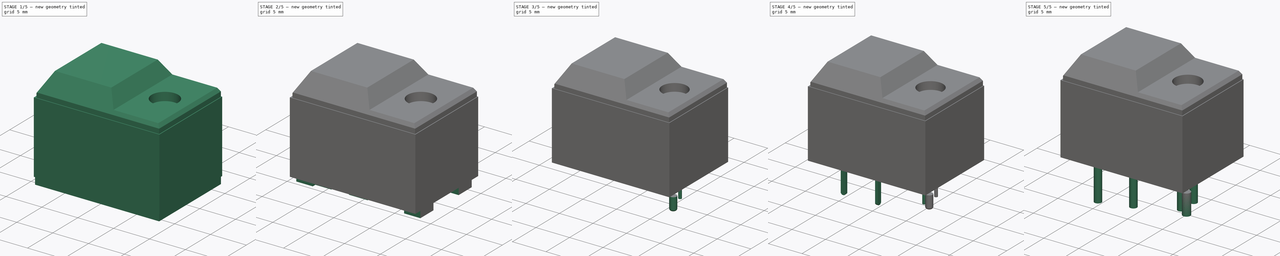
[diagram: build sequence overview — one tinted view per stage of 5, left to right]
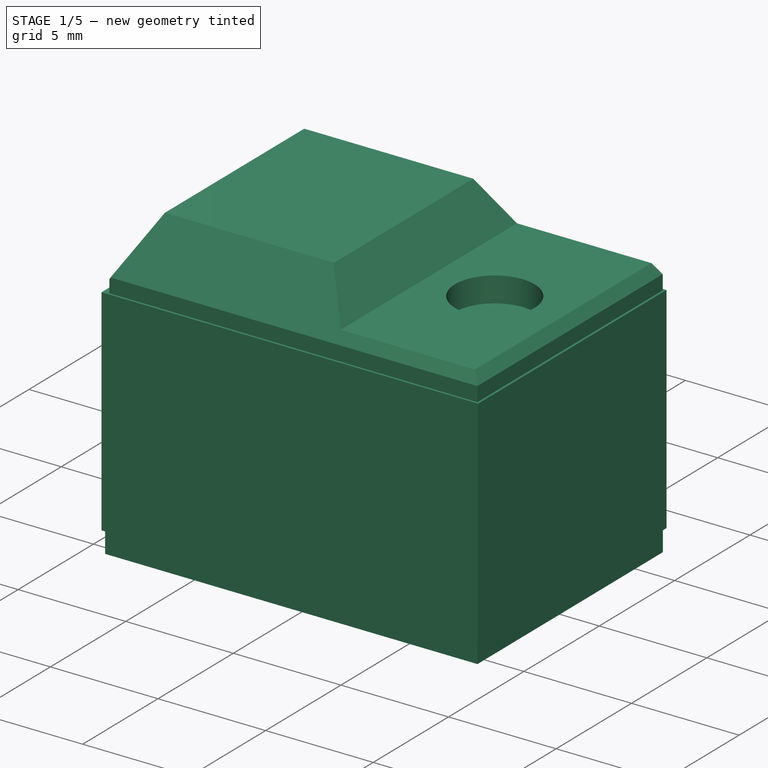
[diagram: stage 1 of 5 — iso view after this stage's code; geometry added in this stage tinted green]
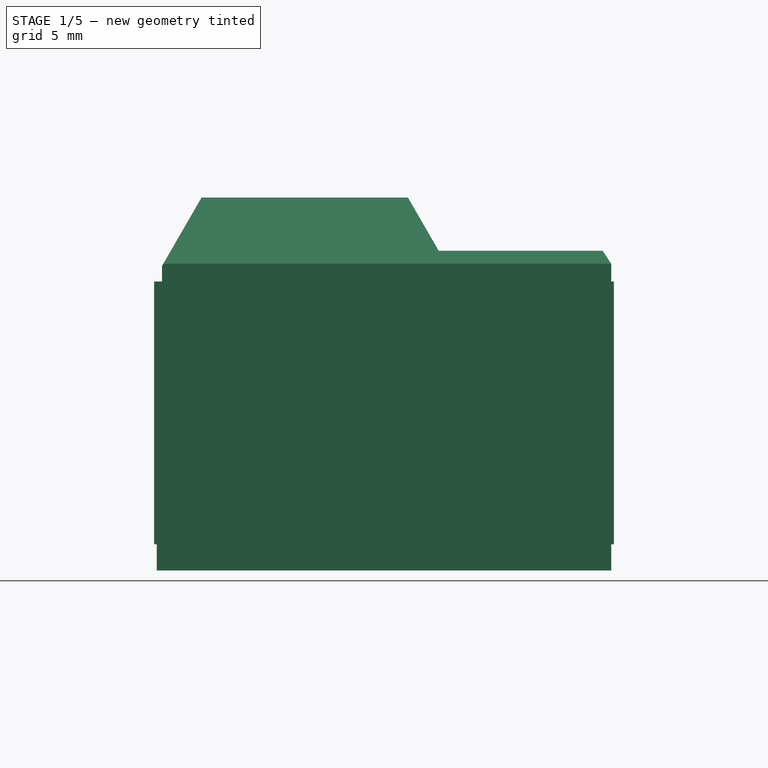
[diagram: stage 1 of 5 — front view after this stage's code; geometry added in this stage tinted green]
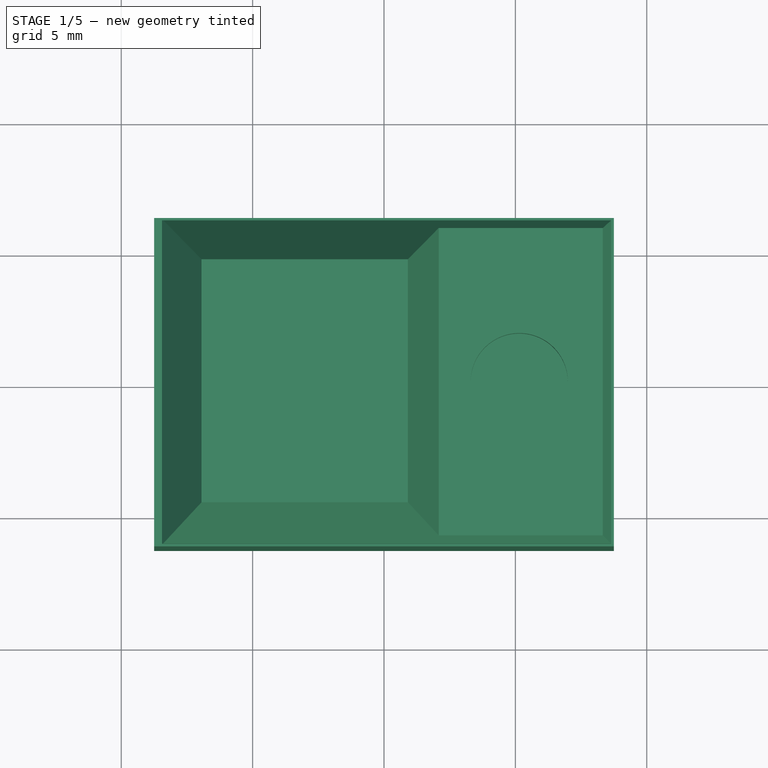
[diagram: stage 1 of 5 — top view after this stage's code; geometry added in this stage tinted green]
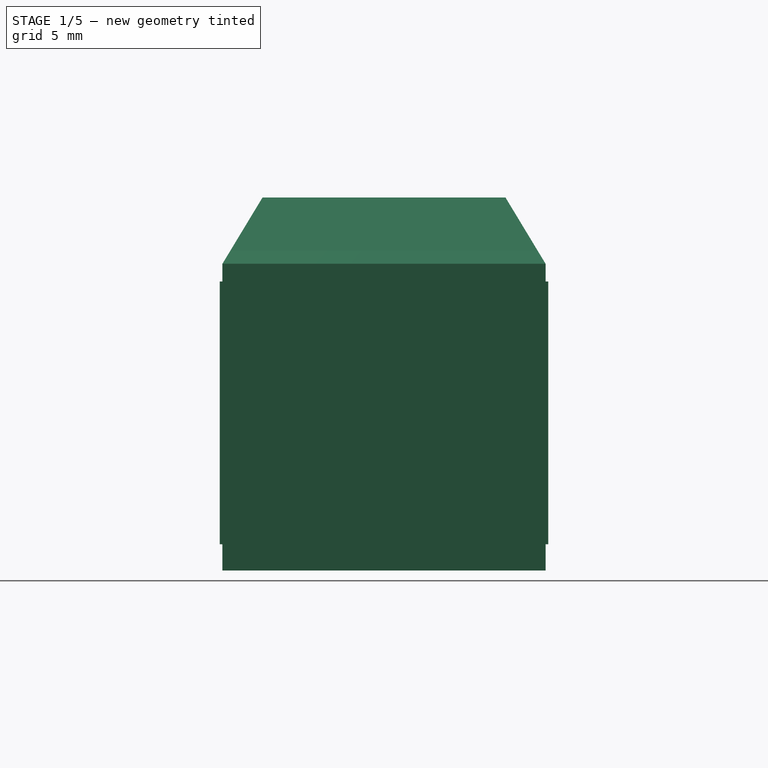
[diagram: stage 1 of 5 — right view after this stage's code; geometry added in this stage tinted green]
FCSTD DOCUMENT  (FreeCAD 0.17R13335 (Git))
Label: Digitast
License: All rights reserved
LicenseURL: http://en.wikipedia.org/wiki/All_rights_reserved
objects: Sketcher::SketchObject×21, PartDesign::Pocket×11, Part::FeaturePython×11, Image::ImagePlane×7, Part::Extrusion×7, PartDesign::Pad×3, Part::Cut×2, Part::Compound×2, Spreadsheet::Sheet×1, Part::Mirroring×1, Part::Chamfer×1, Part::Fillet×1, Part::Feature×1, Part::Cylinder×1, App::DocumentObjectGroupPython×1
note: 76 computed .brp shape members not serialized (recipe doc carries the construction recipe); baked Part::Feature solids carry a one-line shape summary decoded from their .brp

FEATURE [Spreadsheet::Sheet] Spreadsheet
  cells = B3=pdf; C3=66,891 px; D3==17.5mm; F3==66.891099999999994 / 17.5; G3==1mm; F4==100 / 3.8223500000000001; F5==159.25 * 26.161899999999999; F6==53.558999999999997 * 26.161899999999999; C9=44.107999999999997; D9=14.300000000000001; F9=3.0844755240000001; G9==1mm; F10=32.420422598999998
FEATURE [Image::ImagePlane] ImagePlane  label="DigitastBaseBottom"
  Placement = pos=(2.49,4.28,-7.9) rot=(0,-1,0;3.14159rad)
  XSize = 41.66
  YSize = 36.23
FEATURE [Image::ImagePlane] ImagePlane001  label="DigitastBaseFront"
  Placement = pos=(-8.7,0,-4.5) rot=(0,1,0;1.5708rad)
  XSize = 14.01
  YSize = 12.34
FEATURE [Image::ImagePlane] ImagePlane002  label="DigitastBaseTop"
  Placement = pos=(-0.09,0.04,0) rot=(0,0,1;0rad)
  XSize = 20.39
  YSize = 13.83
FEATURE [Image::ImagePlane] ImagePlane003  label="DigitastBaseSide"
  Placement = pos=(3.44,-6.15,-9.2) rot=(0,0.707107,0.707107;3.14159rad)
  XSize = 45.53
  YSize = 30.98
FEATURE [Sketcher::SketchObject] Sketch
  MapMode = 5
  Placement = pos=(0,0,-7.9) rot=(0,0,1;0rad)
  sketch-geometry (8):
    g0: LineSegment StartX=-8.65 StartY=6.15 StartZ=0 EndX=8.65 EndY=6.15 EndZ=0
    g1: LineSegment StartX=8.65 StartY=6.15 StartZ=0 EndX=8.65 EndY=-6.15 EndZ=0
    g2: LineSegment StartX=8.65 StartY=-6.15 StartZ=0 EndX=-8.65 EndY=-6.15 EndZ=0
    g3: LineSegment StartX=-8.65 StartY=6.15 StartZ=0 EndX=-8.65 EndY=0.495297 EndZ=0
    g4: LineSegment StartX=-8.65 StartY=0.495297 StartZ=0 EndX=-7.84579 EndY=0.495297 EndZ=0
    g5: LineSegment StartX=-7.84579 StartY=0.495297 StartZ=0 EndX=-7.84579 EndY=-0.495297 EndZ=0
    g6: LineSegment StartX=-7.84579 StartY=-0.495297 StartZ=0 EndX=-8.65 EndY=-0.495297 EndZ=0
    g7: LineSegment StartX=-8.65 StartY=-0.495297 StartZ=0 EndX=-8.65 EndY=-6.15 EndZ=0
  constraints (21):
    c: Coincident(g0,g1)
    c: Coincident(g1,g2)
    c: Horizontal(g2)
    c: Vertical(g1)
    c: Symmetric(g0,g2,g-1)
    c: Symmetric(g1,g0,g-1)
    c: Symmetric(g0,g0,g-2)
    c: Coincident(g3,g0)
    c: Vertical(g3)
    c: Horizontal(g4)
    c: Coincident(g5,g4)
    c: Vertical(g5)
    c: Coincident(g6,g5)
    c: Horizontal(g6)
    c: Coincident(g7,g6)
    c: Coincident(g7,g2)
    c: Vertical(g7)
    c: Coincident(g3,g4)
    c: Symmetric(g6,g3,g-1)
    c: DistanceX(g0,g0) = 17.3
    c: DistanceY(g2,g0) = 12.3
FEATURE [PartDesign::Pad] Pad
  Length = 7.9
  Length2 = 100
  Placement = pos=(0,0,-7.9) rot=(0,0,1;0rad)
  Profile = -> Sketch
  Type = 0
FEATURE [Image::ImagePlane] ImagePlane004  label="DigitastAllTop"
  Placement = pos=(0,0,6) rot=(0,0,1;0rad)
  XSize = 17.27
  YSize = 12.33
FEATURE [Image::ImagePlane] ImagePlane005  label="DigitastAllSide"
  Placement = pos=(4.88,0.85,-8.95) rot=(0,-0.707107,-0.707107;3.14159rad)
  XSize = 45.41
  YSize = 30.6
FEATURE [Image::ImagePlane] ImagePlane006  label="DigitastAllFront"
  Placement = pos=(3.65,0,-2.34) rot=(-0.707107,0,0.707107;3.14159rad)
  XSize = 18.46
  YSize = 12.33
FEATURE [Sketcher::SketchObject] Sketch016
  MapMode = 5
  Placement = pos=(0,0,0) rot=(1,0,0;1.5708rad)
  sketch-geometry (15):
    g0: LineSegment StartX=-8.45235 StartY=1.22387 StartZ=0 EndX=-8.45235 EndY=3.68772 EndZ=0
    g1: LineSegment StartX=-8.45235 StartY=3.68772 StartZ=0 EndX=-6.94415 EndY=6.3 EndZ=0
    g2: LineSegment StartX=-6.94415 StartY=6.3 StartZ=0 EndX=0.910413 EndY=6.3 EndZ=0
    g3: LineSegment StartX=0.910413 StartY=6.3 StartZ=0 EndX=2.08192 EndY=4.27089 EndZ=0
    g4: LineSegment StartX=2.08192 StartY=4.27089 StartZ=0 EndX=8.32635 EndY=4.27089 EndZ=0
    g5: LineSegment StartX=8.32635 StartY=4.27089 StartZ=0 EndX=8.64765 EndY=3.77549 EndZ=0
    g6: LineSegment StartX=8.64765 StartY=3.77549 StartZ=0 EndX=8.64765 EndY=0 EndZ=0
    g7: LineSegment StartX=8.64765 StartY=0 StartZ=0 EndX=8.24716 EndY=0 EndZ=0
    g8: LineSegment StartX=8.24716 StartY=0 StartZ=0 EndX=8.24716 EndY=-2.24335 EndZ=0
    g9: LineSegment StartX=8.24716 StartY=-2.24335 StartZ=0 EndX=6.67137 EndY=-2.24335 EndZ=0
    g10: LineSegment StartX=6.67137 StartY=-2.24335 StartZ=0 EndX=6.67137 EndY=-3.40864 EndZ=0
    g11: LineSegment StartX=6.67137 StartY=-3.40864 StartZ=0 EndX=5.78404 EndY=-4.64178 EndZ=0
    g12: LineSegment StartX=-8.45235 StartY=1.22387 StartZ=0 EndX=4.3357 EndY=1.22387 EndZ=0
    g13: LineSegment StartX=4.3357 StartY=1.22387 StartZ=0 EndX=4.3357 EndY=-2.97867 EndZ=0
    g14: ArcOfCircle CenterX=6.49095 CenterY=-2.56396 CenterZ=0 NormalX=0 NormalY=0 NormalZ=1 AngleXU=0 Radius=2.19478 StartAngle=3.33169 EndAngle=4.38446
  constraints (30):
    c: Coincident(g0,g1)
    c: Coincident(g1,g2)
    c: Coincident(g2,g3)
    c: Coincident(g3,g4)
    c: Coincident(g4,g5)
    c: Coincident(g5,g6)
    c: Coincident(g6,g7)
    c: Coincident(g7,g8)
    c: Coincident(g8,g9)
    c: Coincident(g9,g10)
    c: Coincident(g10,g11)
    c: Horizontal(g12)
    c: Coincident(g13,g12)
    c: Coincident(g12,g0)
    c: Horizontal(g9)
    c: Vertical(g8)
    c: Vertical(g6)
    c: Horizontal(g4)
    c: Angle(g1,g2) = 2.0944
    c: Angle(g2,g3) = 2.0944
    c: Horizontal(g2)
    c: Vertical(g0)
    c: Vertical(g13)
    c: Vertical(g10)
    c: DistanceX(g0,g5) = 17.1
    c: DistanceY(g-1,g2) = 6.3
    c: Coincident(g14,g13)
    c: Coincident(g14,g11)
    c: Horizontal(g7)
    c: PointOnObject(g7,g-1)
FEATURE [PartDesign::Pad] Pad002
  Length = 12.3
  Length2 = 100
  Midplane = true
  Placement = pos=(0,0,0) rot=(1,0,0;1.5708rad)
  Profile = -> Sketch016
  Type = 0
FEATURE [Sketcher::SketchObject] Sketch017
  ExternalGeometry = -> [Pad002]
  MapMode = 5
  Placement = pos=(8.24716,0,0) rot=(0.707107,0,0.707107;3.14159rad)
  Support = -> [Pad002]
  sketch-geometry (4):
    g0: LineSegment StartX=0 StartY=4.5 StartZ=0 EndX=-4.64178 EndY=4.5 EndZ=0
    g1: LineSegment StartX=-4.64178 StartY=4.5 StartZ=0 EndX=-4.64178 EndY=-4.5 EndZ=0
    g2: LineSegment StartX=-4.64178 StartY=-4.5 StartZ=0 EndX=0 EndY=-4.5 EndZ=0
    g3: LineSegment StartX=0 StartY=-4.5 StartZ=0 EndX=0 EndY=4.5 EndZ=0
  constraints (12):
    c: Coincident(g0,g1)
    c: Coincident(g1,g2)
    c: Coincident(g2,g3)
    c: Coincident(g3,g0)
    c: Horizontal(g0)
    c: Horizontal(g2)
    c: Vertical(g1)
    c: Vertical(g3)
    c: PointOnObject(g0,g-2)
    c: Symmetric(g1,g0,g-1)
    c: DistanceY(g1,g1) = 9
    c: PointOnObject(g1,g-3)
FEATURE [PartDesign::Pocket] Pocket007
  Length = 5
  Length2 = 100
  Placement = pos=(0,0,0) rot=(1,0,0;1.5708rad)
  Profile = -> Sketch017
  Type = 1
FEATURE [Sketcher::SketchObject] Sketch018
  ExternalGeometry = -> [Pocket007]
  MapMode = 5
  Placement = pos=(8.64765,0,0) rot=(0.707107,0,0.707107;3.14159rad)
  Support = -> [Pocket007]
  sketch-geometry (6):
    g0: LineSegment StartX=6.3 StartY=4.6235 StartZ=0 EndX=3.77549 EndY=6.15 EndZ=0
    g1: LineSegment StartX=6.3 StartY=6.15 StartZ=0 EndX=6.3 EndY=4.6235 EndZ=0
    g2: LineSegment StartX=6.3 StartY=-4.6235 StartZ=0 EndX=6.3 EndY=-6.15 EndZ=0
    g3: LineSegment StartX=6.3 StartY=-6.15 StartZ=0 EndX=3.77549 EndY=-6.15 EndZ=0
    g4: LineSegment StartX=3.77549 StartY=-6.15 StartZ=0 EndX=6.3 EndY=-4.6235 EndZ=0
    g5: LineSegment StartX=3.77549 StartY=6.15 StartZ=0 EndX=6.3 EndY=6.15 EndZ=0
  constraints (13):
    c: PointOnObject(g0,g-3)
    c: Coincident(g0,g-7)
    c: Coincident(g1,g-5)
    c: Coincident(g1,g0)
    c: PointOnObject(g2,g-3)
    c: Coincident(g2,g-4)
    c: Coincident(g2,g3)
    c: Coincident(g3,g-6)
    c: Coincident(g3,g4)
    c: Coincident(g4,g2)
    c: Symmetric(g2,g0,g-1)
    c: Coincident(g5,g0)
    c: Coincident(g5,g1)
FEATURE [PartDesign::Pocket] Pocket008
  Length = 5
  Length2 = 100
  Placement = pos=(0,0,0) rot=(1,0,0;1.5708rad)
  Profile = -> Sketch018
  Type = 1
FEATURE [Sketcher::SketchObject] Sketch019
  ExternalGeometry = -> [Pocket008]
  MapMode = 5
  Placement = pos=(0,0,1.22387) rot=(1,0,0;3.14159rad)
  Support = -> [Pocket008]
  sketch-geometry (4):
    g0: LineSegment StartX=-6.94415 StartY=4.6235 StartZ=0 EndX=0.910413 EndY=4.6235 EndZ=0
    g1: LineSegment StartX=0.910413 StartY=4.6235 StartZ=0 EndX=0.910413 EndY=-4.6235 EndZ=0
    g2: LineSegment StartX=0.910413 StartY=-4.6235 StartZ=0 EndX=-6.94415 EndY=-4.6235 EndZ=0
    g3: LineSegment StartX=-6.94415 StartY=-4.6235 StartZ=0 EndX=-6.94415 EndY=4.6235 EndZ=0
  constraints (10):
    c: Coincident(g0,g1)
    c: Coincident(g1,g2)
    c: Coincident(g2,g3)
    c: Coincident(g3,g0)
    c: Horizontal(g0)
    c: Horizontal(g2)
    c: Vertical(g1)
    c: Vertical(g3)
    c: Coincident(g0,g-4)
    c: Coincident(g1,g-6)
FEATURE [PartDesign::Pocket] Pocket009
  Length = 2.55
  Length2 = 100
  Placement = pos=(0,0,0) rot=(1,0,0;1.5708rad)
  Profile = -> Sketch019
  Type = 0
FEATURE [Sketcher::SketchObject] Sketch020
  ExternalGeometry = -> [Pocket009]
  MapMode = 5
  Placement = pos=(0,0,6.3) rot=(0,0,1;3.14159rad)
  Support = -> [Pocket009]
  sketch-geometry (1):
    g0: Circle CenterX=-5.14765 CenterY=0 CenterZ=0 NormalX=0 NormalY=0 NormalZ=1 AngleXU=0 Radius=1.85
  constraints (3):
    c: PointOnObject(g0,g-1)
    c: DistanceX(g-3,g0) = 3.5
    c: Radius(g0) = 1.85
FEATURE [PartDesign::Pocket] Pocket010  label="DigitastTop"
  Length = 5
  Length2 = 100
  Placement = pos=(0,0,0) rot=(1,0,0;1.5708rad)
  Profile = -> Sketch020
  Type = 1
FEATURE [Sketcher::SketchObject] Sketch021
  MapMode = 5
  Placement = pos=(0,0,-6.9) rot=(1,0,0;3.14159rad)
  sketch-geometry (4):
    g0: LineSegment StartX=-8.75 StartY=6.25 StartZ=0 EndX=8.75 EndY=6.25 EndZ=0
    g1: LineSegment StartX=8.75 StartY=6.25 StartZ=0 EndX=8.75 EndY=-6.25 EndZ=0
    g2: LineSegment StartX=8.75 StartY=-6.25 StartZ=0 EndX=-8.75 EndY=-6.25 EndZ=0
    g3: LineSegment StartX=-8.75 StartY=-6.25 StartZ=0 EndX=-8.75 EndY=6.25 EndZ=0
  constraints (8):
    c: Coincident(g0,g1)
    c: Coincident(g1,g2)
    c: Coincident(g2,g3)
    c: Coincident(g3,g0)
    c: Horizontal(g0)
    c: Horizontal(g2)
    c: Vertical(g1)
    c: Vertical(g3)
FEATURE [Part::Extrusion] Extrude006  label="DigitastFPHole"
  Base = -> Sketch021
  Dir = (0,0,10)
  DirMode = 0
  FaceMakerClass = Part::FaceMakerExtrusion
  LengthFwd = 0
  LengthRev = 0
  Solid = true
  Symmetric = false
FEATURE [Part::Cylinder] Cylinder
  Angle = 360
  AttacherType = Attacher::AttachEngine3D
  Height = 10
  Placement = pos=(7,-5,-3) rot=(-1,0,0;1.5708rad)
  Radius = 0.4
FEATURE [App::DocumentObjectGroupPython] FPSimButton  # scripted group (container) (typed FeaturePython)
  Group = -> [Pocket010,Cylinder]
  RotationAngle = -6
  RotationAxis = (0,1,0)
  RotationCenter = (7,5,-3)
  Translation = (0.4,0,0)
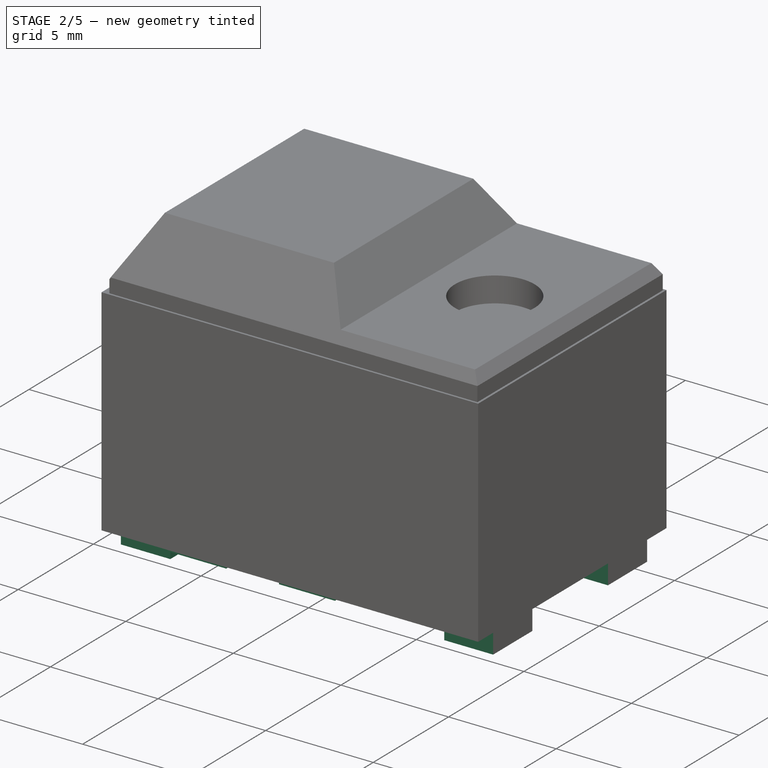
[diagram: stage 2 of 5 — iso view after this stage's code; geometry added in this stage tinted green]
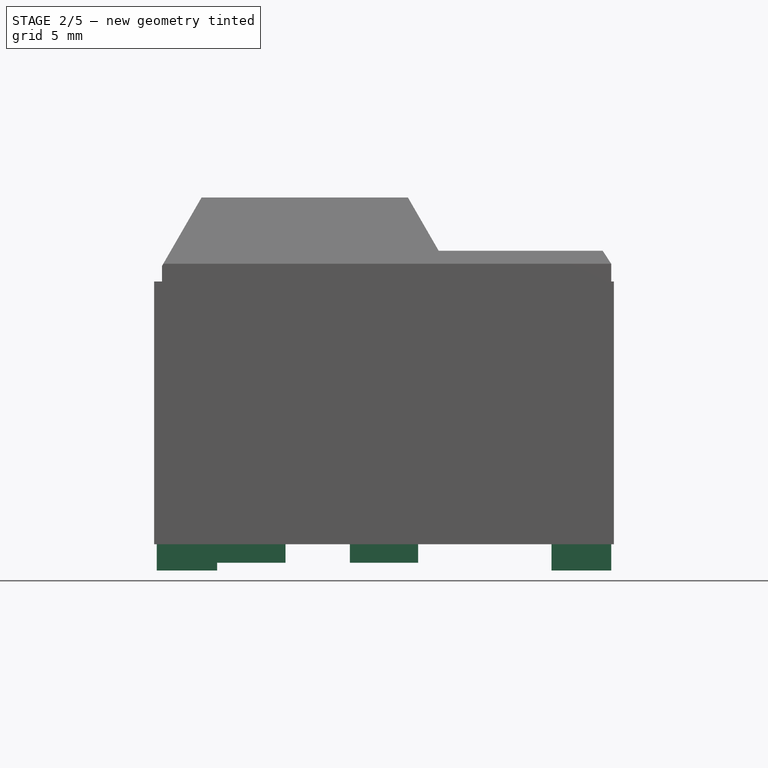
[diagram: stage 2 of 5 — front view after this stage's code; geometry added in this stage tinted green]
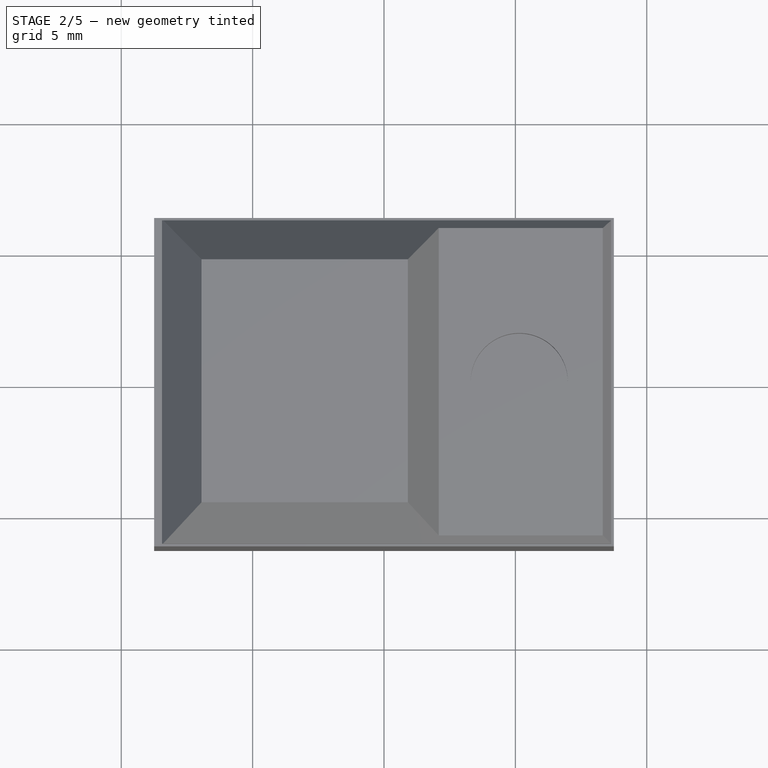
[diagram: stage 2 of 5 — top view after this stage's code; geometry added in this stage tinted green]
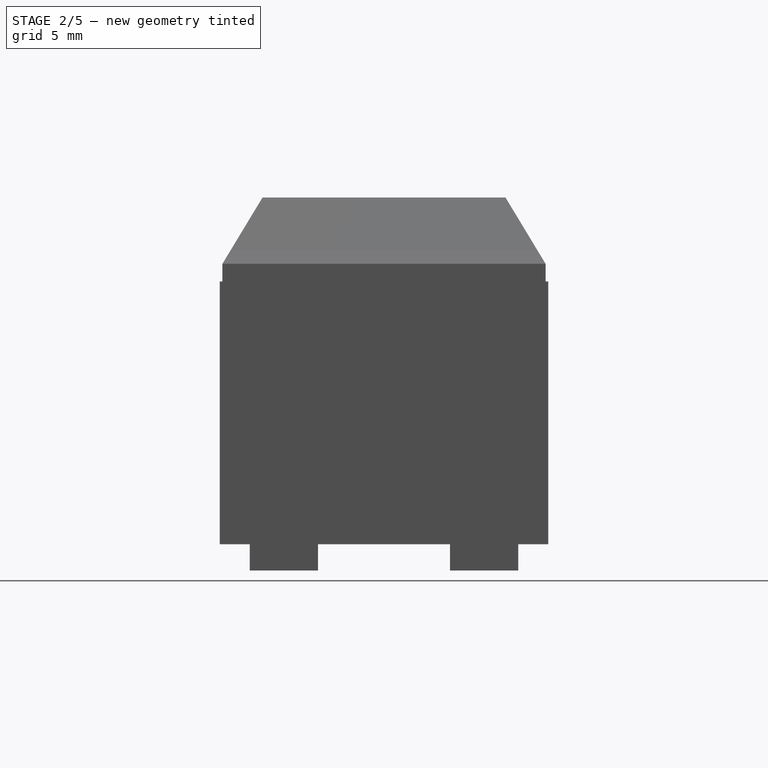
[diagram: stage 2 of 5 — right view after this stage's code; geometry added in this stage tinted green]
FEATURE [Sketcher::SketchObject] Sketch001
  MapMode = 5
  Placement = pos=(0,-6.15,-7.9) rot=(1,0,0;1.5708rad)
  Support = -> [Pad]
  sketch-geometry (11):
    g0: LineSegment StartX=-6.35116 StartY=0 StartZ=0 EndX=-6.35116 EndY=0.294561 EndZ=0
    g1: LineSegment StartX=-6.35116 StartY=0.294561 StartZ=0 EndX=-3.75116 EndY=0.294561 EndZ=0
    g2: LineSegment StartX=-3.75116 StartY=0.294561 StartZ=0 EndX=-3.75116 EndY=1 EndZ=0
    g3: LineSegment StartX=-3.75116 StartY=1 StartZ=0 EndX=-1.3 EndY=1 EndZ=0
    g4: LineSegment StartX=-1.3 StartY=1 StartZ=0 EndX=-1.3 EndY=0.294561 EndZ=0
    g5: LineSegment StartX=-1.3 StartY=0.294561 StartZ=0 EndX=1.3 EndY=0.294561 EndZ=0
    g6: LineSegment StartX=1.3 StartY=0.294561 StartZ=0 EndX=1.3 EndY=1 EndZ=0
    g7: LineSegment StartX=1.3 StartY=1 StartZ=0 EndX=6.37524 EndY=1 EndZ=0
    g8: LineSegment StartX=6.37524 StartY=1 StartZ=0 EndX=6.37524 EndY=0 EndZ=0
    g9: LineSegment StartX=6.37524 StartY=0 StartZ=0 EndX=-6.35116 EndY=0 EndZ=0
    g10: LineSegment [constr] StartX=-8.61643 StartY=1 StartZ=0 EndX=8.67727 EndY=1 EndZ=0
  constraints (29):
    c: Vertical(g0)
    c: Coincident(g0,g1)
    c: Horizontal(g1)
    c: Coincident(g1,g2)
    c: Vertical(g2)
    c: Coincident(g2,g3)
    c: Horizontal(g3)
    c: Coincident(g3,g4)
    c: Vertical(g4)
    c: Coincident(g4,g5)
    c: Horizontal(g5)
    c: Coincident(g5,g6)
    c: Vertical(g6)
    c: Coincident(g6,g7)
    c: Horizontal(g7)
    c: Coincident(g7,g8)
    c: PointOnObject(g8,g-1)
    c: Vertical(g8)
    c: Coincident(g8,g9)
    c: Coincident(g9,g0)
    c: Horizontal(g9)
    c: Horizontal(g10)
    c: DistanceY(g8,g10) = 1
    c: PointOnObject(g6,g10)
    c: PointOnObject(g2,g10)
    c: Equal(g1,g5)
    c: Equal(g2,g4)
    c: DistanceX(g5,g5) = 2.6
    c: Symmetric(g4,g5,g-2)
FEATURE [PartDesign::Pocket] Pocket
  Length = 5
  Length2 = 100
  Placement = pos=(0,0,-7.9) rot=(0,0,1;0rad)
  Profile = -> Sketch001
  Type = 1
FEATURE [Sketcher::SketchObject] Sketch002
  ExternalGeometry = -> [Pocket]
  MapMode = 5
  Placement = pos=(0,-6.15,-7.9) rot=(1,0,0;1.5708rad)
  Support = -> [Pocket]
  sketch-geometry (3):
    g0: LineSegment StartX=-8.65 StartY=7.88926 StartZ=0 EndX=-8.65 EndY=6.90993 EndZ=0
    g1: LineSegment StartX=-8.65 StartY=6.90993 StartZ=0 EndX=-0.95 EndY=7.9 EndZ=0
    g2: LineSegment StartX=-0.95 StartY=7.9 StartZ=0 EndX=-8.65 EndY=7.88926 EndZ=0
  constraints (7):
    c: PointOnObject(g0,g-3)
    c: Vertical(g0)
    c: Coincident(g0,g1)
    c: Coincident(g1,g2)
    c: Coincident(g2,g0)
    c: PointOnObject(g1,g-4)
    c: DistanceX(g2,g2) = 7.7
FEATURE [PartDesign::Pocket] Pocket001
  Length = 5
  Length2 = 100
  Placement = pos=(0,0,-7.9) rot=(0,0,1;0rad)
  Profile = -> Sketch002
  Type = 1
FEATURE [Sketcher::SketchObject] Sketch003
  ExternalGeometry = -> [Pocket001]
  MapMode = 5
  Placement = pos=(-8.65,0,-7.9) rot=(0.57735,-0.57735,-0.57735;2.0944rad)
  Support = -> [Pocket001]
  sketch-geometry (15):
    g0: LineSegment StartX=-6.15 StartY=0 StartZ=0 EndX=-5.11 EndY=0 EndZ=0
    g1: LineSegment StartX=-5.11 StartY=0 StartZ=0 EndX=-5.11 EndY=1 EndZ=0
    g2: LineSegment StartX=-5.11 StartY=1 StartZ=0 EndX=-6.15 EndY=1 EndZ=0
    g3: LineSegment StartX=-6.15 StartY=1 StartZ=0 EndX=-6.15 EndY=0 EndZ=0
    g4: LineSegment StartX=6.15 StartY=0 StartZ=0 EndX=5.11 EndY=0 EndZ=0
    g5: LineSegment StartX=5.11 StartY=0 StartZ=0 EndX=5.11 EndY=1 EndZ=0
    g6: LineSegment StartX=5.11 StartY=1 StartZ=0 EndX=6.15 EndY=1 EndZ=0
    g7: LineSegment StartX=6.15 StartY=1 StartZ=0 EndX=6.15 EndY=0 EndZ=0
    g8: LineSegment StartX=-2.51 StartY=0 StartZ=0 EndX=2.51 EndY=0 EndZ=0
    g9: LineSegment StartX=2.51 StartY=0 StartZ=0 EndX=2.51 EndY=1 EndZ=0
    g10: LineSegment StartX=2.51 StartY=1 StartZ=0 EndX=-2.51 EndY=1 EndZ=0
    g11: LineSegment StartX=-2.51 StartY=1 StartZ=0 EndX=-2.51 EndY=0 EndZ=0
    g12: LineSegment [constr] StartX=-6.15 StartY=1 StartZ=0 EndX=6.15 EndY=1 EndZ=0
    g13: LineSegment [constr] StartX=-3.81 StartY=2.52052 StartZ=0 EndX=-3.81 EndY=-0.763645 EndZ=0
    g14: LineSegment [constr] StartX=3.81 StartY=2.52052 StartZ=0 EndX=3.81 EndY=-0.763645 EndZ=0
  constraints (42):
    c: Coincident(g0,g1)
    c: Coincident(g1,g2)
    c: Coincident(g2,g3)
    c: Coincident(g3,g0)
    c: Horizontal(g0)
    c: Horizontal(g2)
    c: Vertical(g1)
    c: Vertical(g3)
    c: Coincident(g0,g-3)
    c: Coincident(g4,g5)
    c: Coincident(g5,g6)
    c: Coincident(g6,g7)
    c: Coincident(g7,g4)
    c: Horizontal(g4)
    c: Horizontal(g6)
    c: Vertical(g5)
    c: Vertical(g7)
    c: Coincident(g4,g-4)
    c: Coincident(g8,g9)
    c: Coincident(g9,g10)
    c: Coincident(g10,g11)
    c: Coincident(g11,g8)
    c: Horizontal(g8)
    c: Horizontal(g10)
    c: Vertical(g9)
    c: Vertical(g11)
    c: PointOnObject(g8,g-1)
    c: PointOnObject(g12,g-3)
    c: Horizontal(g12)
    c: PointOnObject(g1,g12)
    c: PointOnObject(g10,g12)
    c: PointOnObject(g5,g12)
    c: Symmetric(g8,g8,g-2)
    c: Symmetric(g0,g4,g-2)
    c: DistanceY(g4,g12) = 1
    c: PointOnObject(g12,g-4)
    c: Vertical(g14)
    c: Symmetric(g13,g14,g-2)
    c: Symmetric(g13,g14,g-2)
    c: DistanceX(g13,g14) = 7.62
    c: Symmetric(g8,g0,g13)
    c: DistanceX(g8,g4) = 2.6
FEATURE [PartDesign::Pocket] Pocket002
  Length = 5
  Length2 = 100
  Placement = pos=(0,0,-7.9) rot=(0,0,1;0rad)
  Profile = -> Sketch003
  Type = 1
FEATURE [Sketcher::SketchObject] Sketch005
  ExternalGeometry = -> [Pocket002]
  MapMode = 5
  Placement = pos=(0,-6.15,-7.9) rot=(1,0,0;1.5708rad)
  Support = -> [Pocket002]
  sketch-geometry (5):
    g0: LineSegment StartX=6.2318 StartY=3.06018 StartZ=0 EndX=8.65 EndY=3.06018 EndZ=0
    g1: LineSegment StartX=8.65 StartY=3.06018 StartZ=0 EndX=8.65 EndY=7.9 EndZ=0
    g2: LineSegment StartX=8.65 StartY=7.9 StartZ=0 EndX=4.40966 EndY=7.9 EndZ=0
    g3: LineSegment StartX=4.40966 StartY=7.9 StartZ=0 EndX=4.40966 EndY=4.84345 EndZ=0
    g4: ArcOfCircle CenterX=6.35725 CenterY=5.01092 CenterZ=0 NormalX=0 NormalY=0 NormalZ=1 AngleXU=0 Radius=1.95477 StartAngle=3.22737 EndAngle=4.64817
  constraints (13):
    c: PointOnObject(g0,g-3)
    c: Horizontal(g0)
    c: Coincident(g0,g1)
    c: PointOnObject(g1,g-3)
    c: Coincident(g1,g2)
    c: PointOnObject(g2,g-4)
    c: Horizontal(g2)
    c: Coincident(g2,g3)
    c: Vertical(g3)
    c: DistanceX(g4) = 6.35725
    c: DistanceY(g4) = 5.01092
    c: Coincident(g4,g3)
    c: Coincident(g0,g4)
FEATURE [Part::Extrusion] Extrude
  Base = -> Sketch005
  Dir = (0,1.7,0)
  DirMode = 0
  FaceMakerClass = Part::FaceMakerExtrusion
  LengthFwd = 0
  LengthRev = 0
  Solid = true
  Symmetric = false
FEATURE [Part::Mirroring] Part__Mirroring  label="Extrude (Mirror #1)"
  Base = (0,0,0)
  Normal = (0,1,0)
  Source = -> Extrude
FEATURE [Part::Cut] Cut
  Base = -> Pocket002
  Tool = -> Part__Mirroring
FEATURE [Part::Cut] Cut001
  Base = -> Cut
  Tool = -> Extrude
FEATURE [Sketcher::SketchObject] Sketch006
  ExternalGeometry = -> [Cut001]
  MapMode = 5
  Placement = pos=(0,0,-4.83982) rot=(0,0,1;0rad)
  Support = -> [Cut001]
  sketch-geometry (8):
    g0: LineSegment StartX=7.65 StartY=5.45 StartZ=0 EndX=8.65 EndY=5.45 EndZ=0
    g1: LineSegment StartX=8.65 StartY=5.45 StartZ=0 EndX=8.65 EndY=4.45 EndZ=0
    g2: LineSegment StartX=8.65 StartY=4.45 StartZ=0 EndX=7.65 EndY=4.45 EndZ=0
    g3: LineSegment StartX=7.65 StartY=4.45 StartZ=0 EndX=7.65 EndY=5.45 EndZ=0
    g4: LineSegment StartX=8.65 StartY=-5.45 StartZ=0 EndX=7.65 EndY=-5.45 EndZ=0
    g5: LineSegment StartX=7.65 StartY=-5.45 StartZ=0 EndX=7.65 EndY=-4.45 EndZ=0
    g6: LineSegment StartX=7.65 StartY=-4.45 StartZ=0 EndX=8.65 EndY=-4.45 EndZ=0
    g7: LineSegment StartX=8.65 StartY=-4.45 StartZ=0 EndX=8.65 EndY=-5.45 EndZ=0
  constraints (22):
    c: Coincident(g0,g1)
    c: Coincident(g1,g2)
    c: Coincident(g2,g3)
    c: Coincident(g3,g0)
    c: Horizontal(g0)
    c: Horizontal(g2)
    c: Vertical(g1)
    c: Vertical(g3)
    c: Coincident(g-3,g1)
    c: DistanceY(g1,g1) = 1
    c: DistanceX(g0,g0) = 1
    c: Coincident(g4,g5)
    c: Coincident(g5,g6)
    c: Coincident(g6,g7)
    c: Coincident(g7,g4)
    c: Horizontal(g4)
    c: Horizontal(g6)
    c: Vertical(g5)
    c: Vertical(g7)
    c: Coincident(g6,g-4)
    c: DistanceY(g5,g5) = 1
    c: DistanceX(g4,g4) = 1
FEATURE [PartDesign::Pad] Pad001
  Length = 2.4
  Length2 = 100
  Profile = -> Sketch006
  Type = 0
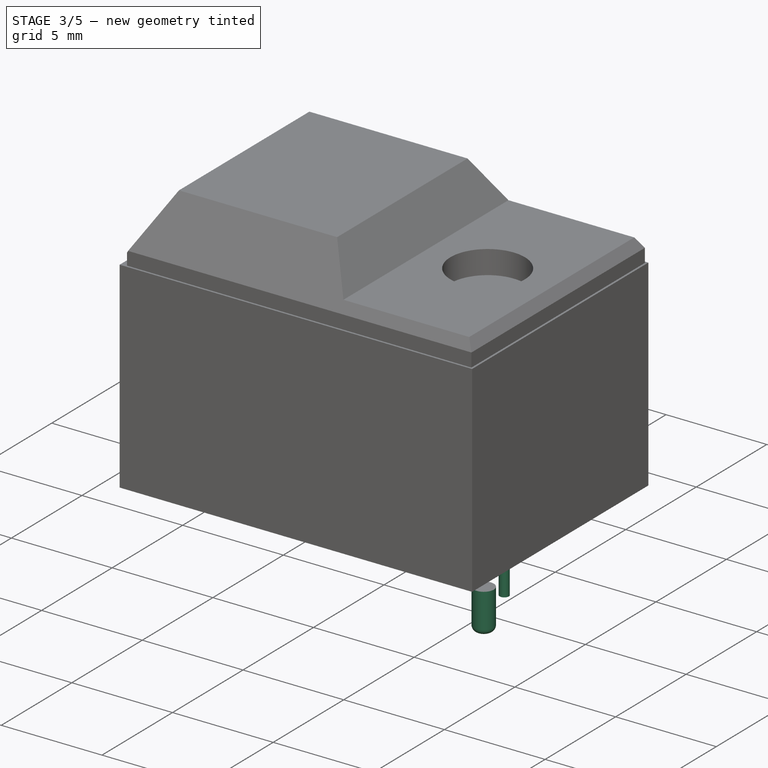
[diagram: stage 3 of 5 — iso view after this stage's code; geometry added in this stage tinted green]
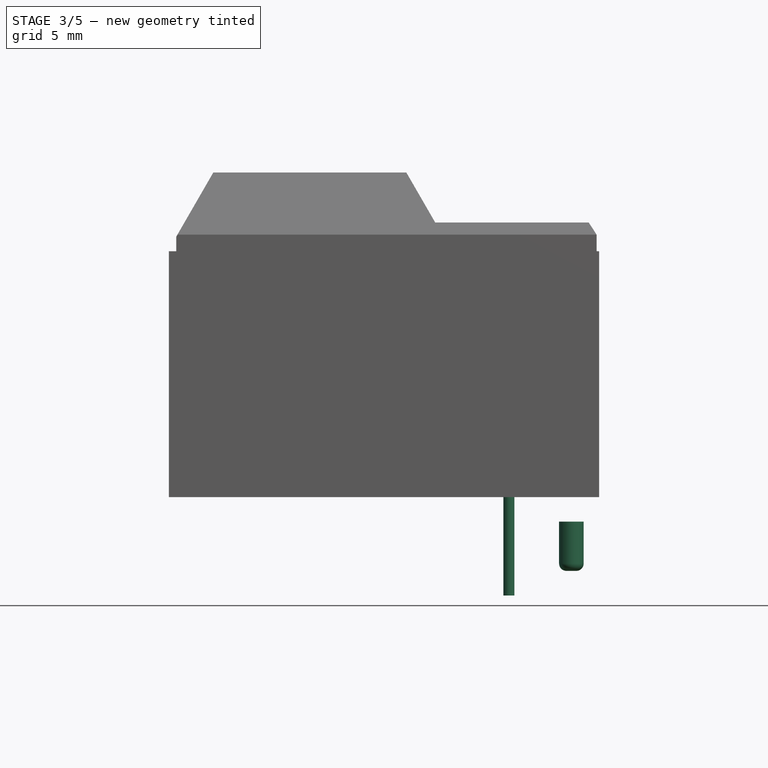
[diagram: stage 3 of 5 — front view after this stage's code; geometry added in this stage tinted green]
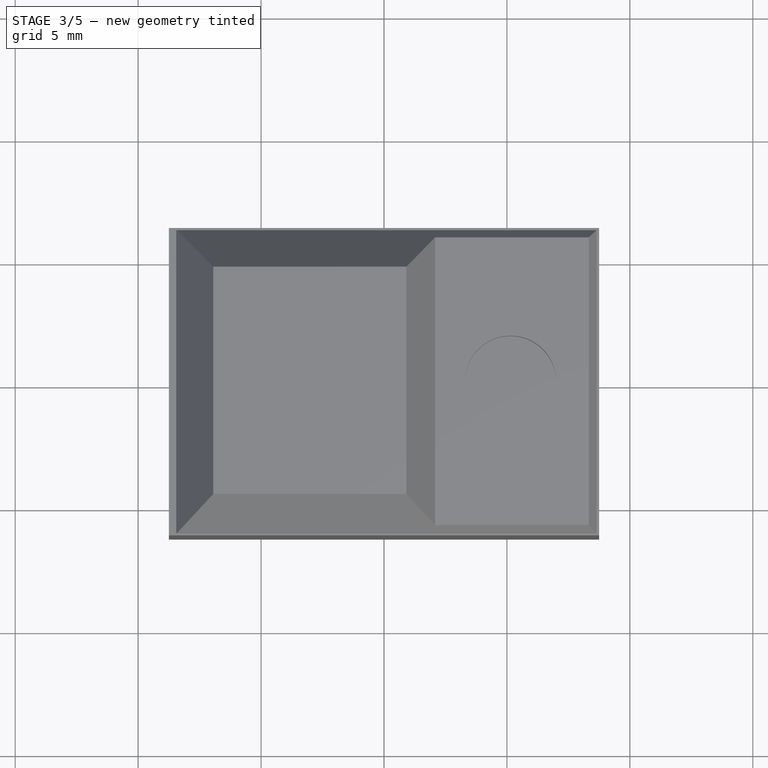
[diagram: stage 3 of 5 — top view after this stage's code; geometry added in this stage tinted green]
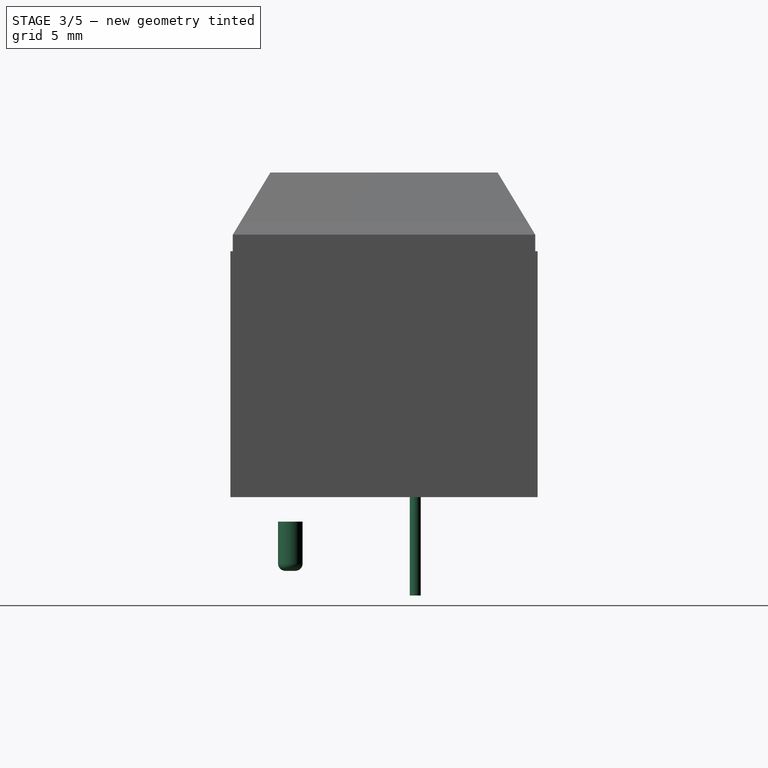
[diagram: stage 3 of 5 — right view after this stage's code; geometry added in this stage tinted green]
FEATURE [Sketcher::SketchObject] Sketch007
  MapMode = 5
  Placement = pos=(0,-4.45,0) rot=(1,0,0;1.5708rad)
  Support = -> [Pad001]
  sketch-geometry (4):
    g0: LineSegment StartX=6.28365 StartY=-2.51035 StartZ=0 EndX=7.77426 EndY=-2.51035 EndZ=0
    g1: LineSegment StartX=7.77426 StartY=-2.51035 StartZ=0 EndX=7.77426 EndY=-3.38577 EndZ=0
    g2: LineSegment StartX=7.77426 StartY=-3.38577 StartZ=0 EndX=6.28365 EndY=-3.38577 EndZ=0
    g3: ArcOfCircle CenterX=6.28365 CenterY=-2.94806 CenterZ=0 NormalX=0 NormalY=0 NormalZ=1 AngleXU=0 Radius=0.437713 StartAngle=1.5708 EndAngle=4.71239
  constraints (7):
    c: Coincident(g0,g1)
    c: Coincident(g1,g2)
    c: Horizontal(g2)
    c: Horizontal(g0)
    c: Vertical(g1)
    c: Tangent(g3,g2) = 1.5708
    c: Tangent(g3,g0) = 1.5708
FEATURE [PartDesign::Pocket] Pocket003
  Length = 5
  Length2 = 100
  Profile = -> Sketch007
  Type = 1
FEATURE [Sketcher::SketchObject] Sketch009
  MapMode = 5
  Placement = pos=(0,0,-7.9) rot=(1,0,0;3.14159rad)
  Support = -> [Pocket003]
  sketch-geometry (1):
    g0: Circle CenterX=0 CenterY=0 CenterZ=0 NormalX=0 NormalY=0 NormalZ=1 AngleXU=0 Radius=0.5
  constraints (2):
    c: Coincident(g0,g-1)
    c: Radius(g0) = 0.5
FEATURE [Part::Extrusion] Extrude002
  Base = -> Sketch009
  Dir = (0,0,-2)
  DirMode = 0
  FaceMakerClass = Part::FaceMakerExtrusion
  LengthFwd = 0
  LengthRev = 0
  Solid = true
  Symmetric = false
FEATURE [Part::Fillet] Fillet  label="PlasticPin"
  Base = -> Extrude002
  Edges = 1 edges r=0.3: [Edge3]
  Placement = pos=(7.62,-3.81,0) rot=(0,0,1;0rad)
FEATURE [Sketcher::SketchObject] Sketch010
  MapMode = 5
  Placement = pos=(0,0,-6.9) rot=(1,0,0;3.14159rad)
  Support = -> [Pocket003]
  sketch-geometry (5):
    g0: Circle CenterX=5.08 CenterY=-3.81 CenterZ=0 NormalX=0 NormalY=0 NormalZ=1 AngleXU=0 Radius=0.4
    g1: LineSegment [constr] StartX=5.08 StartY=-3.81 StartZ=0 EndX=5.08 EndY=3.81 EndZ=0
    g2: Circle CenterX=5.08 CenterY=-1.27 CenterZ=0 NormalX=0 NormalY=0 NormalZ=1 AngleXU=0 Radius=0.4
    g3: Circle CenterX=5.08 CenterY=1.27 CenterZ=0 NormalX=0 NormalY=0 NormalZ=1 AngleXU=0 Radius=0.4
    g4: Circle CenterX=5.08 CenterY=3.81 CenterZ=0 NormalX=0 NormalY=0 NormalZ=1 AngleXU=0 Radius=0.4
  constraints (15):
    c: DistanceY(g0,g-1) = 3.81
    c: DistanceX(g-1,g0) = 5.08
    c: Vertical(g1)
    c: Coincident(g1,g0)
    c: Symmetric(g0,g1,g-1)
    c: PointOnObject(g2,g1)
    c: DistanceY(g0,g2) = 2.54
    c: PointOnObject(g3,g1)
    c: DistanceY(g2,g3) = 2.54
    c: PointOnObject(g4,g1)
    c: DistanceY(g3,g4) = 2.54
    c: Radius(g0) = 0.4
    c: Radius(g2) = 0.4
    c: Radius(g3) = 0.4
    c: Radius(g4) = 0.4
FEATURE [PartDesign::Pocket] Pocket004
  Length = 5
  Length2 = 100
  Profile = -> Sketch010
  Type = 1
FEATURE [Sketcher::SketchObject] Sketch011
  ExternalGeometry = -> [Pocket004]
  MapMode = 5
  Placement = pos=(0,-4.45,0) rot=(1,0,0;1.5708rad)
  Support = -> [Pocket004]
  sketch-geometry (5):
    g0: LineSegment [constr] StartX=5.08 StartY=1.09416 StartZ=0 EndX=5.08 EndY=-2.00678 EndZ=0
    g1: LineSegment StartX=4.40966 StartY=0 StartZ=0 EndX=4.79378 EndY=-0.86443 EndZ=0
    g2: LineSegment StartX=4.79378 StartY=-0.86443 StartZ=0 EndX=5.36622 EndY=-0.86443 EndZ=0
    g3: LineSegment StartX=5.36622 StartY=-0.86443 StartZ=0 EndX=5.75034 EndY=0 EndZ=0
    g4: LineSegment StartX=5.75034 StartY=0 StartZ=0 EndX=4.40966 EndY=0 EndZ=0
  constraints (9):
    c: Vertical(g0)
    c: DistanceX(g-1,g0) = 5.08
    c: Coincident(g1,g2)
    c: Coincident(g2,g3)
    c: Coincident(g3,g4)
    c: Coincident(g4,g-3)
    c: Coincident(g1,g4)
    c: Symmetric(g1,g2,g0)
    c: Symmetric(g3,g1,g0)
FEATURE [PartDesign::Pocket] Pocket005  label="_DigitastBase"
  Length = 5
  Length2 = 100
  Profile = -> Sketch011
  Type = 1
FEATURE [Sketcher::SketchObject] Sketch012
  MapMode = 5
  Support = -> [Pocket005]
  sketch-geometry (4):
    g0: LineSegment StartX=-1.3498 StartY=0.991481 StartZ=0 EndX=1.96381 EndY=0.991481 EndZ=0
    g1: LineSegment StartX=1.96381 StartY=0.991481 StartZ=0 EndX=1.96381 EndY=-0.991481 EndZ=0
    g2: LineSegment StartX=1.96381 StartY=-0.991481 StartZ=0 EndX=-1.3498 EndY=-0.991481 EndZ=0
    g3: LineSegment StartX=-1.3498 StartY=-0.991481 StartZ=0 EndX=-1.3498 EndY=0.991481 EndZ=0
  constraints (9):
    c: Coincident(g0,g1)
    c: Coincident(g1,g2)
    c: Coincident(g2,g3)
    c: Coincident(g3,g0)
    c: Horizontal(g0)
    c: Horizontal(g2)
    c: Vertical(g1)
    c: Vertical(g3)
    c: Symmetric(g0,g1,g-1)
FEATURE [PartDesign::Pocket] Pocket006  label="DigitastBase"
  Length = 5
  Length2 = 100
  Profile = -> Sketch012
  Type = 0
FEATURE [Sketcher::SketchObject] Sketch013
  MapMode = 5
  Placement = pos=(0,0,-6.9) rot=(1,0,0;3.14159rad)
  Support = -> [Pocket006]
  sketch-geometry (1):
    g0: Circle CenterX=0 CenterY=0 CenterZ=0 NormalX=0 NormalY=0 NormalZ=1 AngleXU=0 Radius=0.225
  constraints (1):
    c: Radius(g0) = 0.225
FEATURE [Part::Extrusion] Extrude003  label="LedPin"
  Base = -> Sketch013
  Dir = (0,0,-4)
  DirMode = 0
  FaceMakerClass = Part::FaceMakerExtrusion
  LengthFwd = 0
  LengthRev = 0
  Placement = pos=(5.08,-1.27,0) rot=(0,0,1;0rad)
  Solid = true
  Symmetric = false
FEATURE [Part::FeaturePython] Clone004  label="Clone of LedPin"  # Draft clone (typed FeaturePython)
  Objects = -> [Extrude003]
  Placement = pos=(5.08,1.27,0) rot=(0,0,1;0rad)
  Scale = (1,1,1)
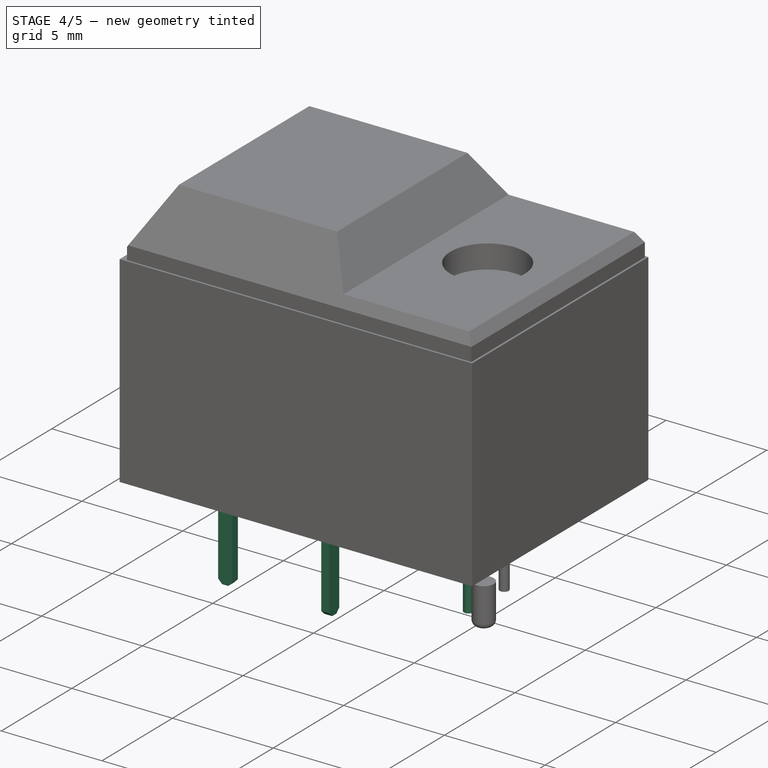
[diagram: stage 4 of 5 — iso view after this stage's code; geometry added in this stage tinted green]
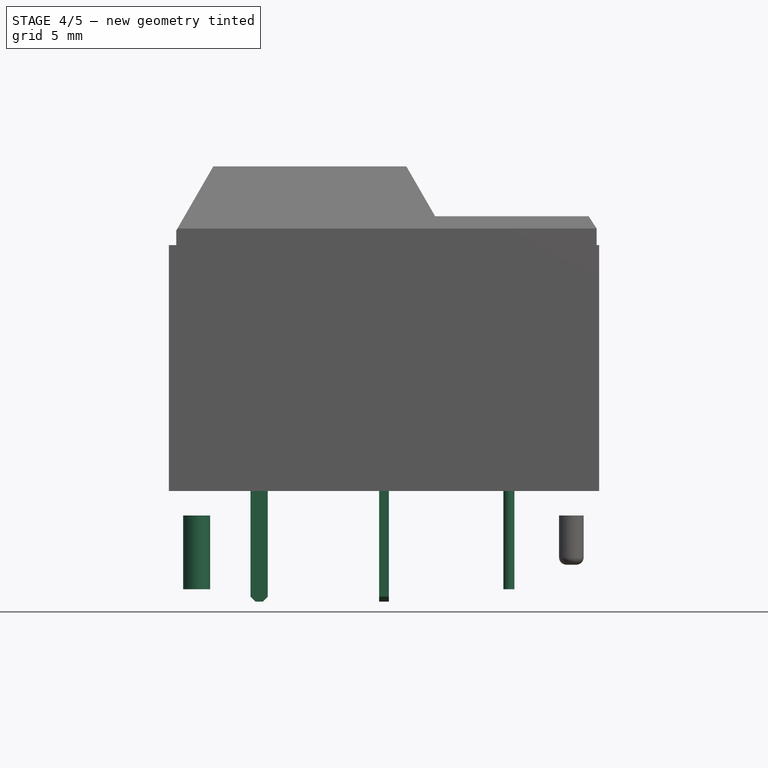
[diagram: stage 4 of 5 — front view after this stage's code; geometry added in this stage tinted green]
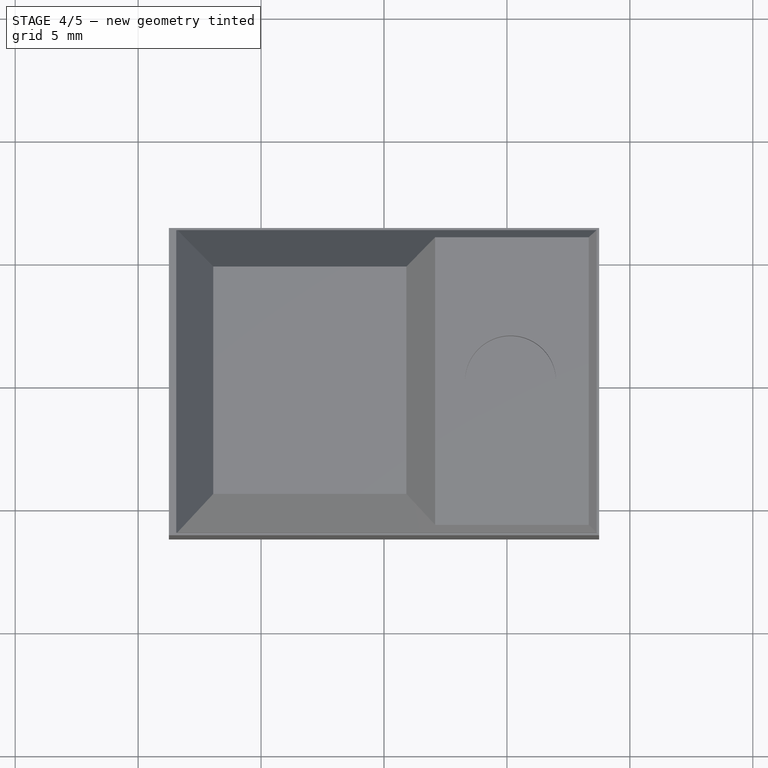
[diagram: stage 4 of 5 — top view after this stage's code; geometry added in this stage tinted green]
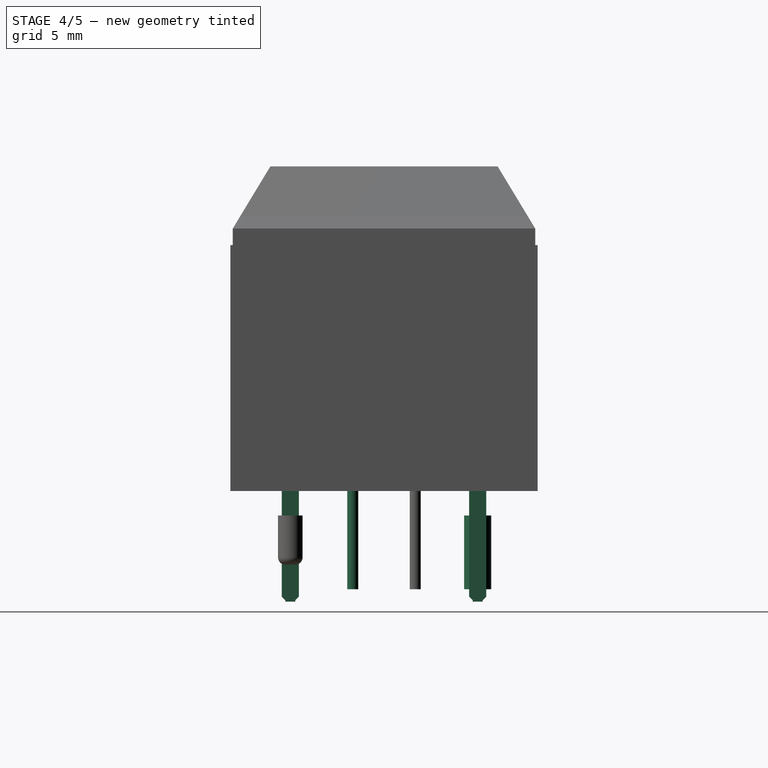
[diagram: stage 4 of 5 — right view after this stage's code; geometry added in this stage tinted green]
FEATURE [Sketcher::SketchObject] Sketch008
  MapMode = 5
  Placement = pos=(0,0,-6.9) rot=(1,0,0;3.14159rad)
  Support = -> [Pocket003]
  sketch-geometry (4):
    g0: LineSegment StartX=-0.2 StartY=0.35 StartZ=0 EndX=0.2 EndY=0.35 EndZ=0
    g1: LineSegment StartX=0.2 StartY=0.35 StartZ=0 EndX=0.2 EndY=-0.35 EndZ=0
    g2: LineSegment StartX=0.2 StartY=-0.35 StartZ=0 EndX=-0.2 EndY=-0.35 EndZ=0
    g3: LineSegment StartX=-0.2 StartY=-0.35 StartZ=0 EndX=-0.2 EndY=0.35 EndZ=0
  constraints (12):
    c: Coincident(g0,g1)
    c: Coincident(g1,g2)
    c: Coincident(g2,g3)
    c: Coincident(g3,g0)
    c: Horizontal(g0)
    c: Horizontal(g2)
    c: Vertical(g1)
    c: Vertical(g3)
    c: DistanceX(g0,g0) = 0.4
    c: DistanceY(g1,g1) = 0.7
    c: Symmetric(g0,g0,g-2)
    c: Symmetric(g1,g0,g-1)
FEATURE [Part::Extrusion] Extrude001
  Base = -> Sketch008
  Dir = (0,0,-4.5)
  DirMode = 0
  FaceMakerClass = Part::FaceMakerExtrusion
  LengthFwd = 0
  LengthRev = 0
  Solid = true
  Symmetric = false
FEATURE [Part::Chamfer] Chamfer  label="Pin"
  Base = -> Extrude001
  Edges = 2 edges r=0.2: [Edge4,Edge10]
  Placement = pos=(0,3.81,0) rot=(0,0,1;0rad)
FEATURE [Part::FeaturePython] Clone  label="Clone of Pin"  # Draft clone (typed FeaturePython)
  Objects = -> [Chamfer]
  Placement = pos=(0,-3.81,0) rot=(0,0,1;0rad)
  Scale = (1,1,1)
FEATURE [Part::FeaturePython] Clone001  label="Clone of Pin001"  # Draft clone (typed FeaturePython)
  Objects = -> [Chamfer]
  Placement = pos=(-5.08,-3.81,0) rot=(0,0,1;1.5708rad)
  Scale = (1,1,1)
FEATURE [Part::FeaturePython] Clone002  label="Clone of Pin002"  # Draft clone (typed FeaturePython)
  Objects = -> [Chamfer]
  Placement = pos=(-5.08,3.81,0) rot=(0,0,1;1.5708rad)
  Scale = (1,1,1)
FEATURE [Part::FeaturePython] Clone003  label="Clone of PlasticPin"  # Draft clone (typed FeaturePython)
  Objects = -> [Fillet]
  Placement = pos=(-7.62,3.81,0) rot=(0,0,1;0rad)
  Scale = (1,1,1)
FEATURE [Sketcher::SketchObject] Sketch015
  MapMode = 5
  Placement = pos=(0,0,-6.9) rot=(1,0,0;3.14159rad)
  Support = -> [Pocket005]
  sketch-geometry (1):
    g0: Circle CenterX=0 CenterY=0 CenterZ=0 NormalX=0 NormalY=0 NormalZ=1 AngleXU=0 Radius=0.55
  constraints (2):
    c: Coincident(g0,g-1)
    c: Radius(g0) = 0.55
FEATURE [Part::Extrusion] Extrude005  label="PlasticPinHole"
  Base = -> Sketch015
  Dir = (0,0,-3)
  DirMode = 0
  FaceMakerClass = Part::FaceMakerExtrusion
  LengthFwd = 0
  LengthRev = 0
  Placement = pos=(-7.62,3.81,-1) rot=(0,0,1;0rad)
  Solid = true
  Symmetric = false
FEATURE [Part::Feature] Revolution001  label="DigitastLed"
  Placement = pos=(5.12923,-0.028118,-0.1) rot=(0.57735,0.57735,0.57735;2.0944rad)
  shape: bbox 3.4 x 3.4 x 4.5 mm, 5 faces (baked)
FEATURE [Part::Compound] Compound  label="DigitastPins"
  Links = -> [Chamfer,Clone,Clone001,Clone002,Fillet,Clone003,Extrude003,Clone004]
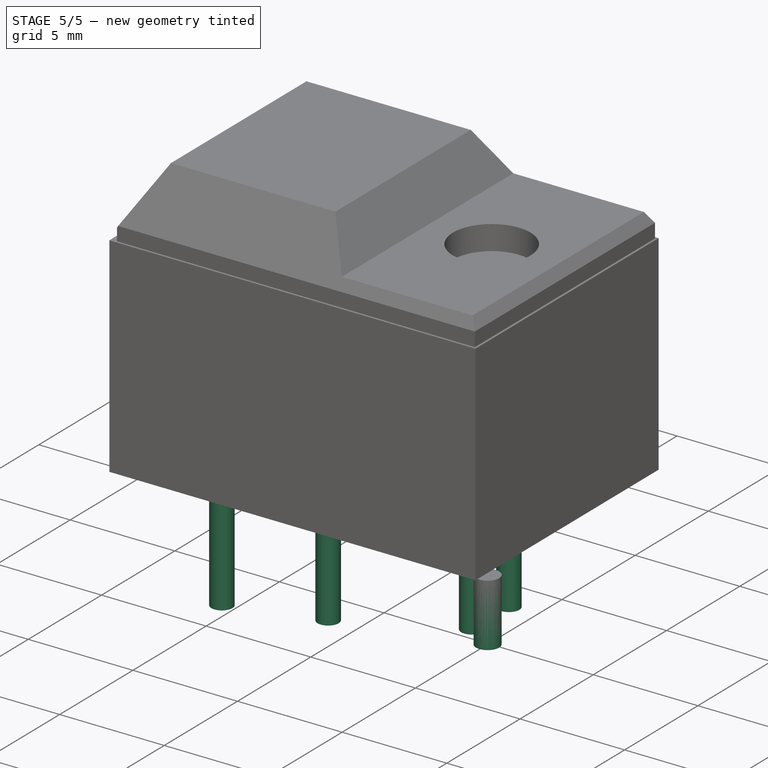
[diagram: stage 5 of 5 — iso view after this stage's code; geometry added in this stage tinted green]
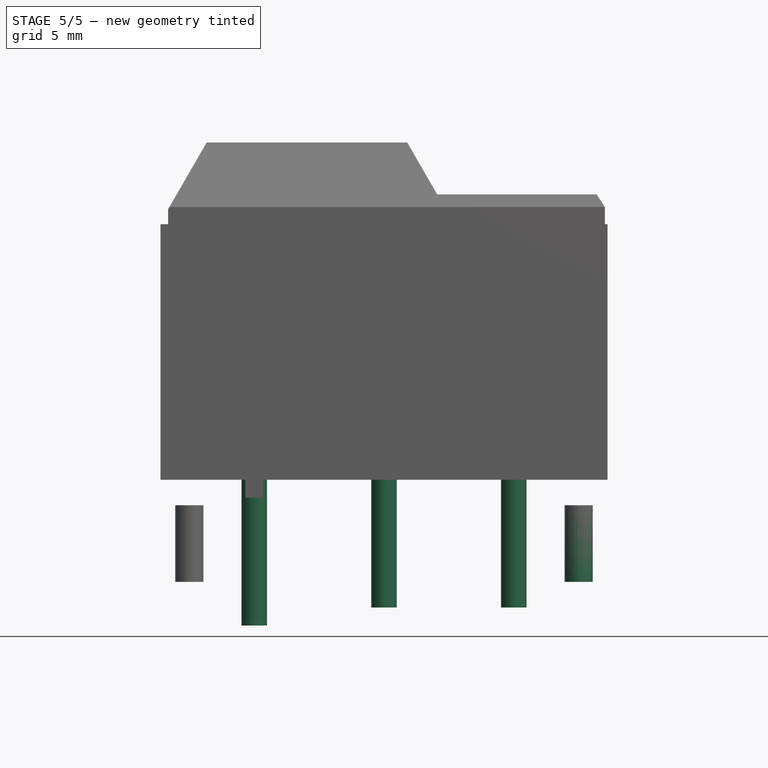
[diagram: stage 5 of 5 — front view after this stage's code; geometry added in this stage tinted green]
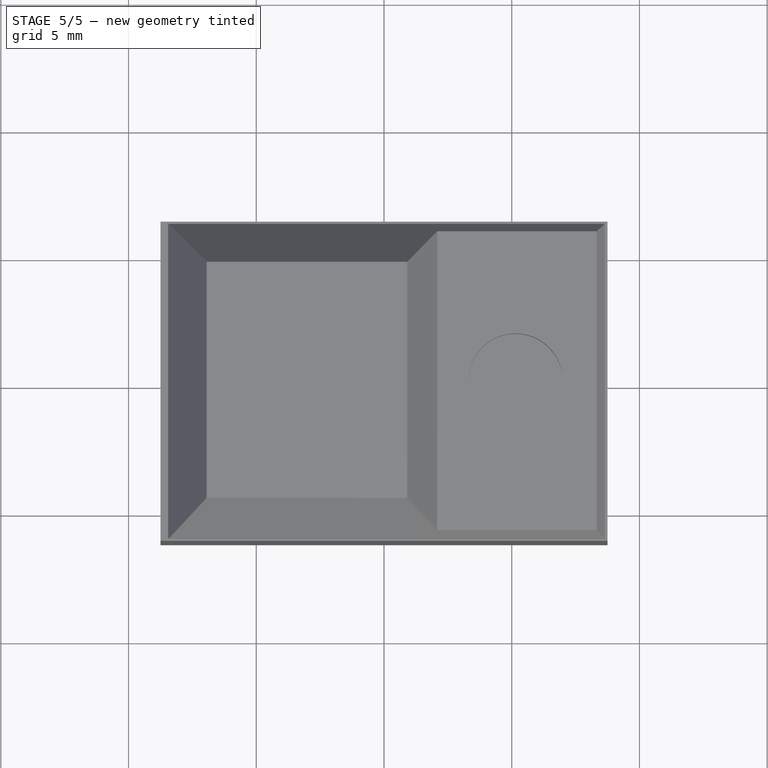
[diagram: stage 5 of 5 — top view after this stage's code; geometry added in this stage tinted green]
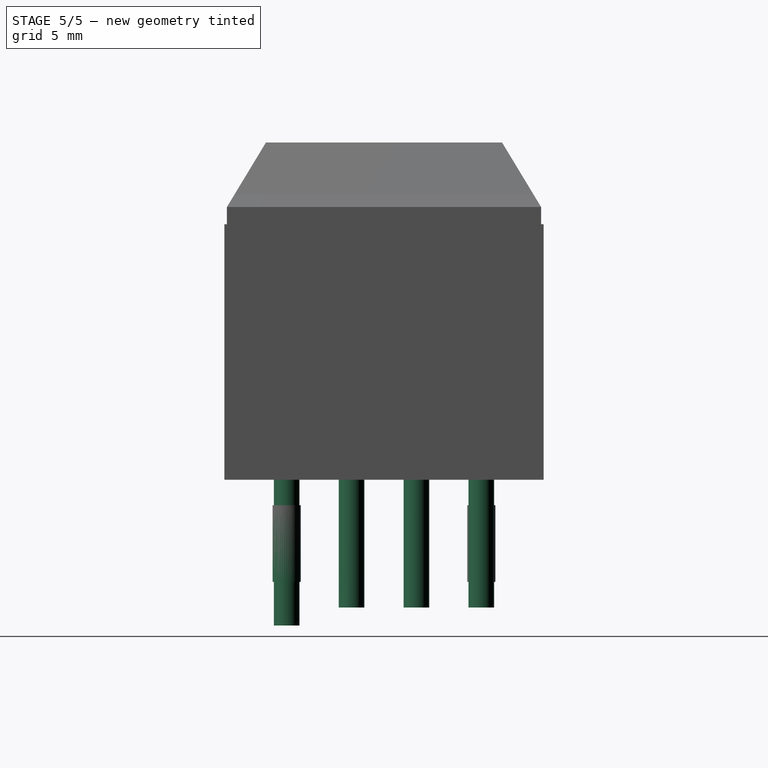
[diagram: stage 5 of 5 — right view after this stage's code; geometry added in this stage tinted green]
FEATURE [Sketcher::SketchObject] Sketch014
  MapMode = 5
  Placement = pos=(0,0,-6.9) rot=(1,0,0;3.14159rad)
  Support = -> [Pocket006]
  sketch-geometry (1):
    g0: Circle CenterX=0 CenterY=0 CenterZ=0 NormalX=0 NormalY=0 NormalZ=1 AngleXU=0 Radius=0.5
  constraints (2):
    c: Radius(g0) = 0.5
    c: Coincident(g0,g-1)
FEATURE [Part::Extrusion] Extrude004  label="PinHole"
  Base = -> Sketch014
  Dir = (0,0,-5)
  DirMode = 0
  FaceMakerClass = Part::FaceMakerExtrusion
  LengthFwd = 0
  LengthRev = 0
  Placement = pos=(-5.08,-3.81,-0.705439) rot=(0,0,1;0rad)
  Solid = true
  Symmetric = false
FEATURE [Part::FeaturePython] Clone005  label="Clone of PinHole"  # Draft clone (typed FeaturePython)
  Objects = -> [Extrude004]
  Placement = pos=(-5.08,3.81,0) rot=(0,0,1;0rad)
  Scale = (1,1,1)
FEATURE [Part::FeaturePython] Clone006  label="Clone of PinHole001"  # Draft clone (typed FeaturePython)
  Objects = -> [Extrude004]
  Placement = pos=(0,3.81,0) rot=(0,0,1;0rad)
  Scale = (1,1,1)
FEATURE [Part::FeaturePython] Clone007  label="Clone of PinHole002"  # Draft clone (typed FeaturePython)
  Objects = -> [Extrude004]
  Placement = pos=(0,-3.81,0) rot=(0,0,1;0rad)
  Scale = (1,1,1)
FEATURE [Part::FeaturePython] Clone008  label="Clone of PinHole003"  # Draft clone (typed FeaturePython)
  Objects = -> [Extrude004]
  Placement = pos=(5.08,-1.27,0) rot=(0,0,1;0rad)
  Scale = (1,1,1)
FEATURE [Part::FeaturePython] Clone009  label="Clone of PinHole004"  # Draft clone (typed FeaturePython)
  Objects = -> [Extrude004]
  Placement = pos=(5.08,1.27,0) rot=(0,0,1;0rad)
  Scale = (1,1,1)
FEATURE [Part::FeaturePython] Clone010  label="Clone of PlasticPinHole"  # Draft clone (typed FeaturePython)
  Objects = -> [Extrude005]
  Placement = pos=(7.62,-3.81,-1) rot=(0,0,1;0rad)
  Scale = (1,1,1)
FEATURE [Part::Compound] Compound001  label="DigitastPinHoles"
  Links = -> [Clone005,Clone006,Clone007,Extrude004,Clone008,Clone009,Extrude005,Clone010]
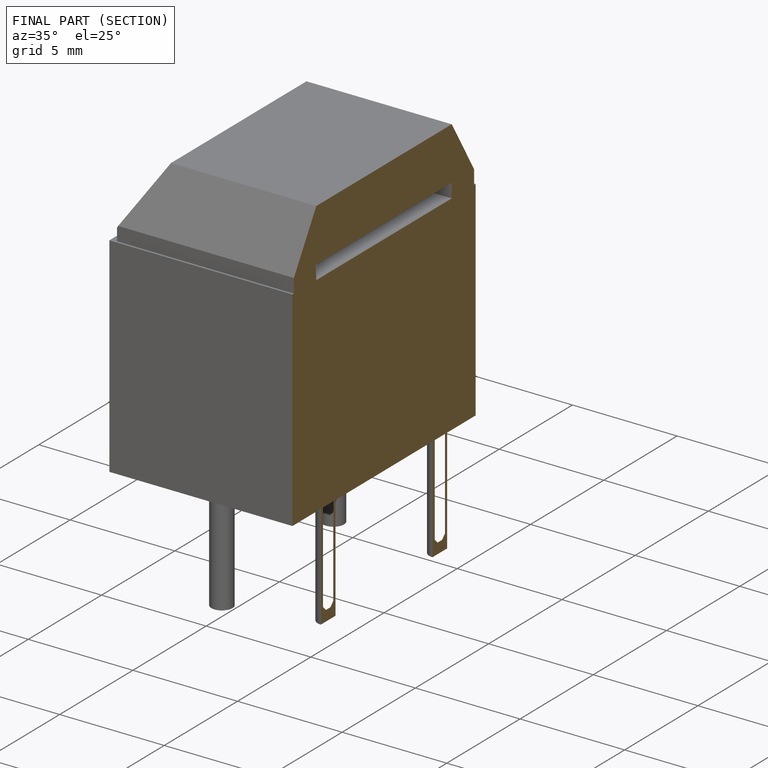
[diagram: finished part — half-section view (interior)]
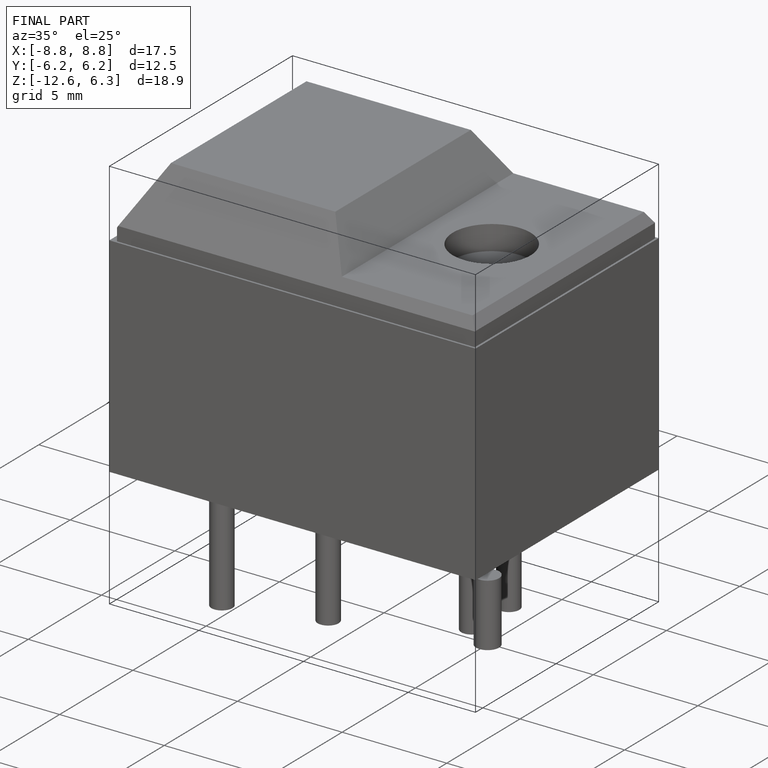
[diagram: finished part — iso view with bounding-box wireframe]
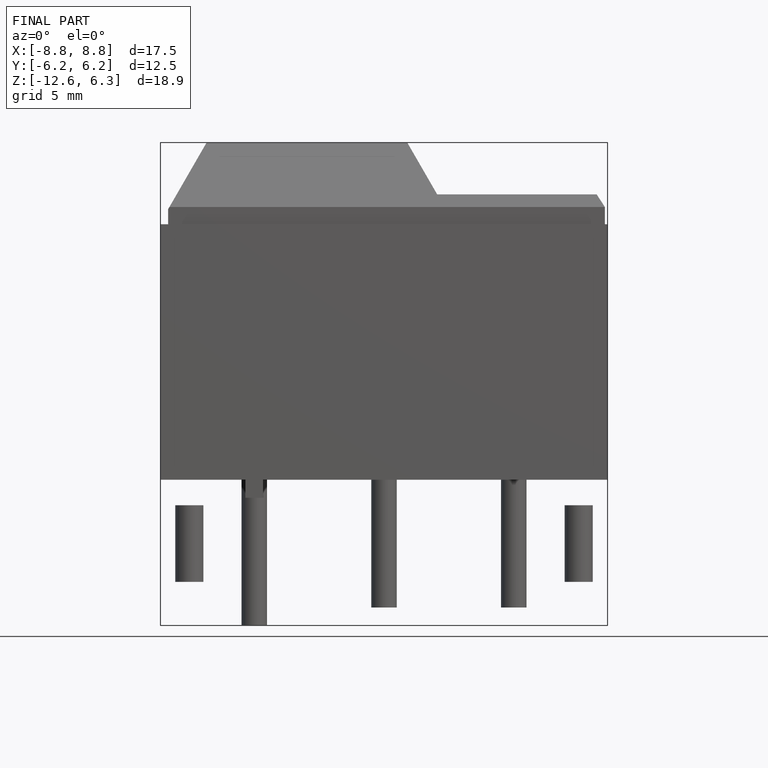
[diagram: finished part — front view with bounding-box wireframe]
